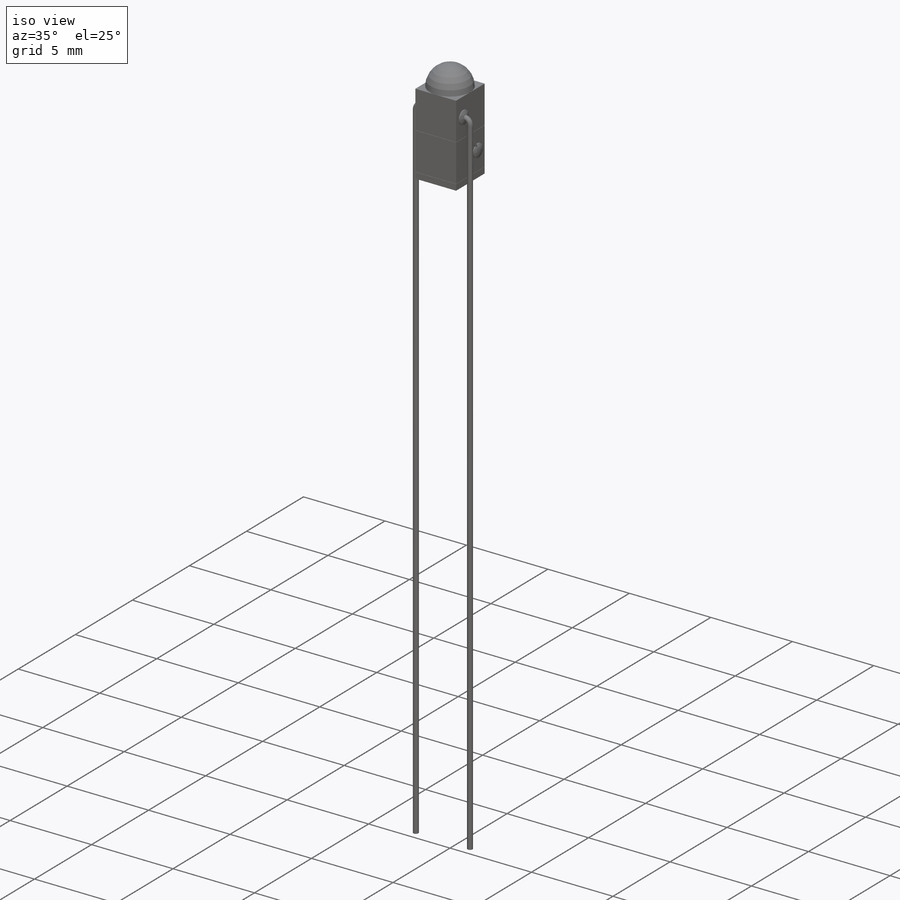
[diagram: iso view]
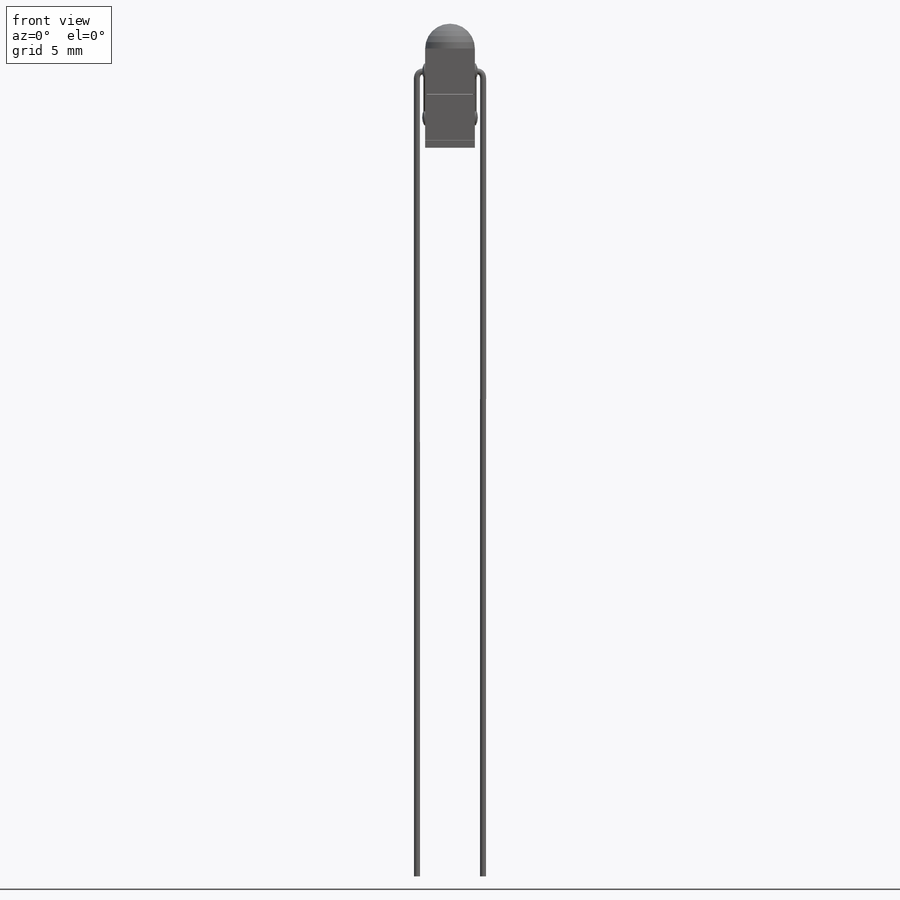
[diagram: front view]
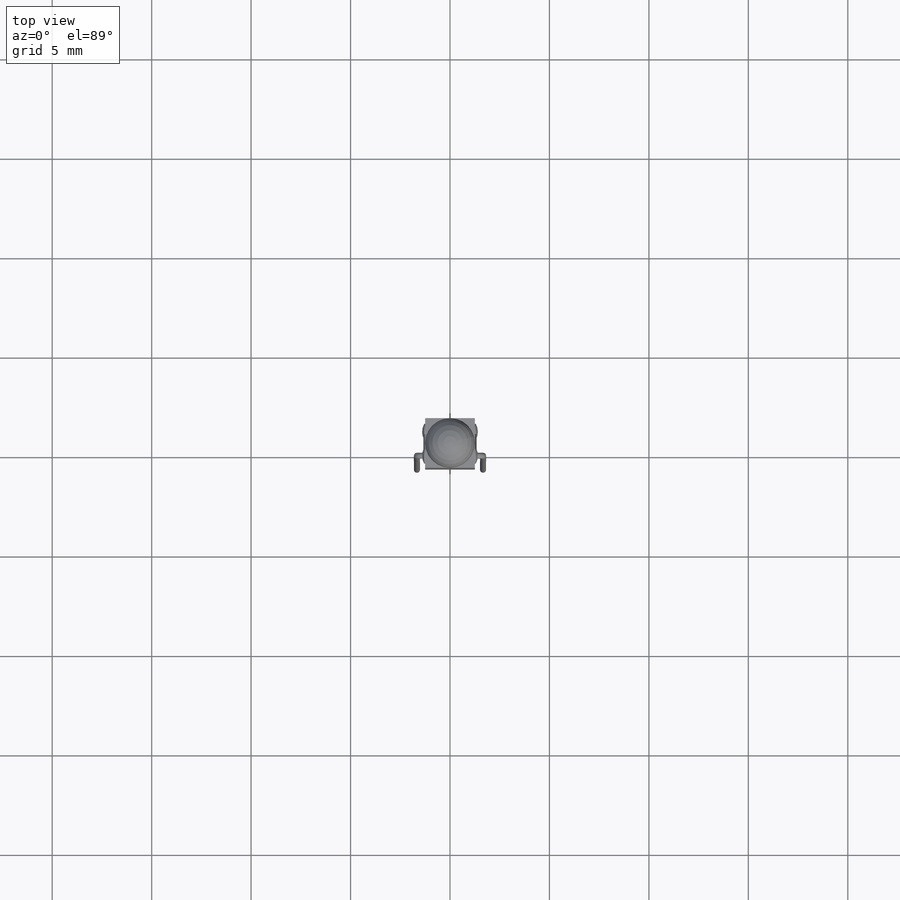
[diagram: top view]
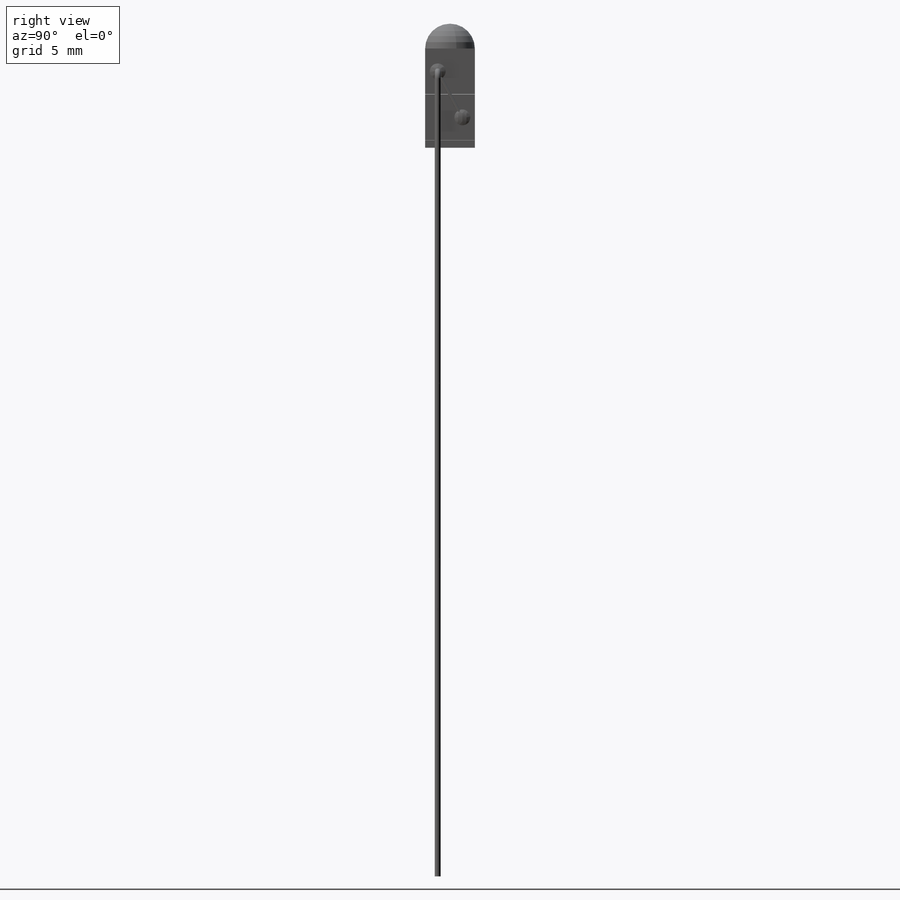
[diagram: right view]
SOLIDWORKS PART (.sldprt)
format: sldprt  version: not decoded by parser v0  size: 510,976 bytes
history: native  units: mm
features: sketch x13, plane x13, extrude x4, mirror x3, dome x2, sweep x2, material x1, pattern_linear x1, revolve x1 (+13 scaffold rows collapsed)
feature tree (53):
  scaffold x13  (default folders/planes/origin — collapsed)
  material  "Material <not specified>"
  sketch  "Sketch1"  dims[c1.D1=~27.482152mm c1.D2=~36.551262mm c2.D1=2.5mm]
  extrude  "Boss-Extrude1"  Depth=2.3mm
  plane  "Plane1"  Offset=1.2mm
  plane  "Plane2"  Offset=2.5mm
  pattern_linear  "LPattern3"  Count1=2 Count2=1 Spacing1=2.31mm Spacing2=2.5mm
  plane  "Plane3"  Offset=0mm
  sketch  "Sketch4"
  plane  "Plane16"  Offset=0mm
  sketch  "Sketch12"  dims[D1=2.5mm D2=2.5mm]
  extrude  "Boss-Extrude8"  Depth=0.37mm
  sketch  "Sketch24"  dims[D1=~0.631243mm]
  extrude  "Boss-Extrude14"  Depth=0.05mm
  dome  "Dome9"
  sketch  "Sketch25"  dims[c1.D1=~0.442621mm c1.D2=~0.304875mm c2.D1=0.63mm]
  extrude  "Boss-Extrude15"  Depth=0.05mm
  dome  "Dome10"
  mirror  "Mirror14"
  plane  "Plane23"  Offset=1.25mm
  plane  "Plane24"  Offset=1.25mm
  plane  "Plane27"  Offset=10mm
  plane  "Plane31"  Offset=0.0001mm
  sketch  "Sketch79"  dims[c1.D1=~2.391985mm c1.D2=~2.431368mm c2.D1=2.5mm c2.D2=2.5mm]
  sketch  "Sketch83"  dims[D1=~2.64264mm]
  plane  "Plane32"
  sketch  "Sketch85"  dims[D1=~0.045231mm]
  sweep  "Sweep1"
  sketch  "Sketch86"  dims[D1=0.1mm]
  plane  "Plane33"
  sketch  "Sketch88"  dims[D1=40.0mm]
  plane  "Plane34"  Offset=1.25mm
  mirror  "Mirror16"
  sketch  "Sketch89"  dims[D1=~0.077442mm]
  plane  "Plane35"
  sketch  "Sketch90"  dims[D1=40.0mm]
  sweep  "Sweep3"
  mirror  "Mirror17"
  plane  "Plane36"  Offset=1.25mm
  sketch  "Sketch91"  dims[D1=~1.241447mm]
  revolve  "Revolve1"  Angle=360deg
decode coverage: 18 of 26 modeling features carry decoded parameters
note: ~ marks probable driven/reference dimensions
note: suppression state not decoded; provenance and decode notes live in map.json
